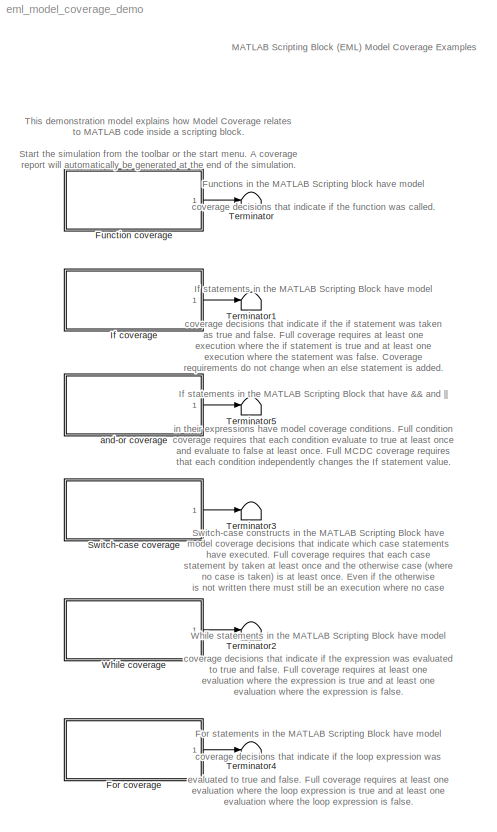
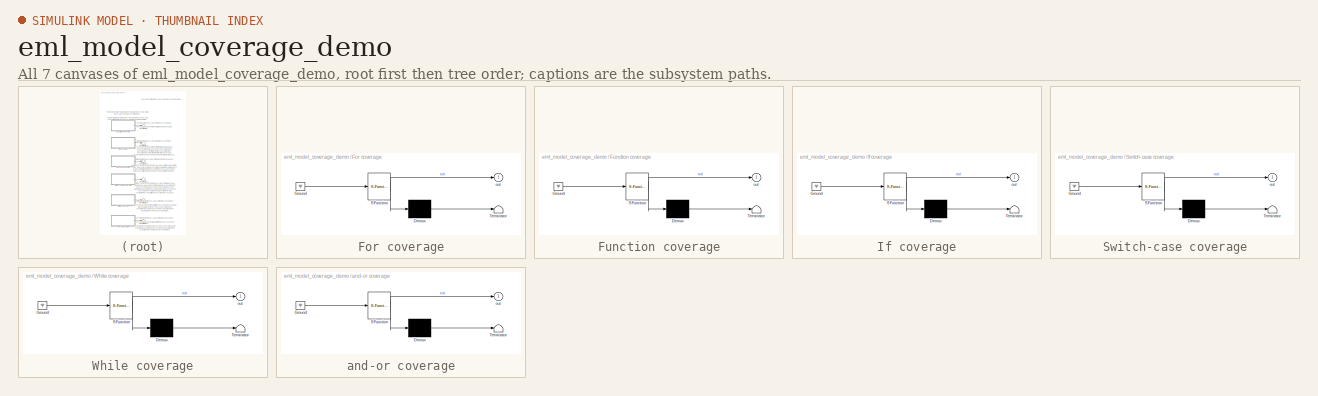
[diagram: thumbnail index - all 7 canvases of the model, root first then tree order]
MODEL eml_model_coverage_demo
KIND model
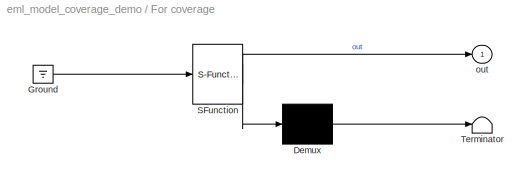
BLOCK [SubSystem] For coverage
  MaskDescription = Stateflow diagram
  MaskDisplay = disp('main');
  MaskIconFrame = on
  MaskIconOpaque = off
  MaskIconRotate = none
  MaskIconUnits = autoscale
  MaskSelfModifiable = on
  MaskType = Stateflow
  MinAlgLoopOccurrences = off
  Ports = [0, 1]
  PropExecContextAcrossSSBoundary = on
  RTWSystemCode = Auto
  TreatAsAtomicUnit = off
BLOCK [Demux] For coverage/ Demux 
  Outputs = 1
  Ports = [1, 1]
BLOCK [Ground] For coverage/ Ground 
BLOCK [S-Function] For coverage/ SFunction 
  FunctionName = sf_sfun
  PortCounts = [1 2]
  Ports = [1, 2]
  Tag = Stateflow S-Function eml_model_coverage_demo 5
BLOCK [Terminator] For coverage/ Terminator 
BLOCK [Outport] For coverage/out
  IconDisplay = Port number
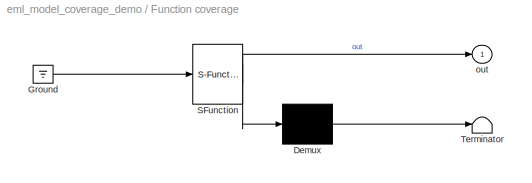
BLOCK [SubSystem] Function coverage
  MaskDescription = Stateflow diagram
  MaskDisplay = disp('main_function');
  MaskIconFrame = on
  MaskIconOpaque = off
  MaskIconRotate = none
  MaskIconUnits = autoscale
  MaskSelfModifiable = on
  MaskType = Stateflow
  MinAlgLoopOccurrences = off
  Ports = [0, 1]
  PropExecContextAcrossSSBoundary = on
  RTWSystemCode = Auto
  TreatAsAtomicUnit = off
BLOCK [Demux] Function coverage/ Demux 
  Outputs = 1
  Ports = [1, 1]
BLOCK [Ground] Function coverage/ Ground 
BLOCK [S-Function] Function coverage/ SFunction 
  FunctionName = sf_sfun
  PortCounts = [1 2]
  Ports = [1, 2]
  Tag = Stateflow S-Function eml_model_coverage_demo 2
BLOCK [Terminator] Function coverage/ Terminator 
BLOCK [Outport] Function coverage/out
  IconDisplay = Port number
BLOCK [SubSystem] If coverage
  MaskDescription = Stateflow diagram
  MaskDisplay = disp('main');
  MaskIconFrame = on
  MaskIconOpaque = off
  MaskIconRotate = none
  MaskIconUnits = autoscale
  MaskSelfModifiable = on
  MaskType = Stateflow
  MinAlgLoopOccurrences = off
  Ports = [0, 1]
  PropExecContextAcrossSSBoundary = on
  RTWSystemCode = Auto
  TreatAsAtomicUnit = off
BLOCK [Demux] If coverage/ Demux 
  Outputs = 1
  Ports = [1, 1]
BLOCK [Ground] If coverage/ Ground 
BLOCK [S-Function] If coverage/ SFunction 
  FunctionName = sf_sfun
  PortCounts = [1 2]
  Ports = [1, 2]
  Tag = Stateflow S-Function eml_model_coverage_demo 1
BLOCK [Terminator] If coverage/ Terminator 
BLOCK [Outport] If coverage/out
  IconDisplay = Port number
BLOCK [SubSystem] Switch-case coverage
  MaskDescription = Stateflow diagram
  MaskDisplay = disp('main');
  MaskIconFrame = on
  MaskIconOpaque = off
  MaskIconRotate = none
  MaskIconUnits = autoscale
  MaskSelfModifiable = on
  MaskType = Stateflow
  MinAlgLoopOccurrences = off
  Ports = [0, 1]
  PropExecContextAcrossSSBoundary = on
  RTWSystemCode = Auto
  TreatAsAtomicUnit = off
BLOCK [Demux] Switch-case coverage/ Demux 
  Outputs = 1
  Ports = [1, 1]
BLOCK [Ground] Switch-case coverage/ Ground 
BLOCK [S-Function] Switch-case coverage/ SFunction 
  FunctionName = sf_sfun
  PortCounts = [1 2]
  Ports = [1, 2]
  Tag = Stateflow S-Function eml_model_coverage_demo 4
BLOCK [Terminator] Switch-case coverage/ Terminator 
BLOCK [Outport] Switch-case coverage/out
  IconDisplay = Port number
BLOCK [Terminator] Terminator
BLOCK [Terminator] Terminator1
BLOCK [Terminator] Terminator2
BLOCK [Terminator] Terminator3
BLOCK [Terminator] Terminator4
BLOCK [Terminator] Terminator5
BLOCK [SubSystem] While coverage
  MaskDescription = Stateflow diagram
  MaskDisplay = disp('main');
  MaskIconFrame = on
  MaskIconOpaque = off
  MaskIconRotate = none
  MaskIconUnits = autoscale
  MaskSelfModifiable = on
  MaskType = Stateflow
  MinAlgLoopOccurrences = off
  Ports = [0, 1]
  PropExecContextAcrossSSBoundary = on
  RTWSystemCode = Auto
  TreatAsAtomicUnit = off
BLOCK [Demux] While coverage/ Demux 
  Outputs = 1
  Ports = [1, 1]
BLOCK [Ground] While coverage/ Ground 
BLOCK [S-Function] While coverage/ SFunction 
  FunctionName = sf_sfun
  PortCounts = [1 2]
  Ports = [1, 2]
  Tag = Stateflow S-Function eml_model_coverage_demo 3
BLOCK [Terminator] While coverage/ Terminator 
BLOCK [Outport] While coverage/out
  IconDisplay = Port number
BLOCK [SubSystem] and-or coverage
  MaskDescription = Stateflow diagram
  MaskDisplay = disp('main');
  MaskIconFrame = on
  MaskIconOpaque = off
  MaskIconRotate = none
  MaskIconUnits = autoscale
  MaskSelfModifiable = on
  MaskType = Stateflow
  MinAlgLoopOccurrences = off
  Ports = [0, 1]
  PropExecContextAcrossSSBoundary = on
  RTWSystemCode = Auto
  TreatAsAtomicUnit = off
BLOCK [Demux] and-or coverage/ Demux 
  Outputs = 1
  Ports = [1, 1]
BLOCK [Ground] and-or coverage/ Ground 
BLOCK [S-Function] and-or coverage/ SFunction 
  FunctionName = sf_sfun
  PortCounts = [1 2]
  Ports = [1, 2]
  Tag = Stateflow S-Function eml_model_coverage_demo 6
BLOCK [Terminator] and-or coverage/ Terminator 
BLOCK [Outport] and-or coverage/out
  IconDisplay = Port number
ANNOTATION (root): For statements in the MATLAB Scripting Block have model \ncoverage decisions that indicate if the loop expression was \nevaluated to true and false. Full coverage requires at least one \nevaluation where the loop expression is true and at least one \nevaluation where the loop expression is false.
ANNOTATION (root): Functions in the MATLAB Scripting block have model \ncoverage decisions that indicate if the function was called.
ANNOTATION (root): If statements in the MATLAB Scripting Block have model \ncoverage decisions that indicate if the if statement was taken\nas true and false. Full coverage requires at least one \nexecution where the if statement is true and at least one \nexecution where the statement was false. Coverage \nrequirements do not change when an else statement is added.
ANNOTATION (root): If statements in the MATLAB Scripting Block that have && and ||\nin their expressions have model coverage conditions. Full condition \ncoverage requires that each condition evaluate to true at least once \nand evaluate to false at least once. Full MCDC coverage requires \nthat each condition independently changes the If statement value.
ANNOTATION (root): MATLAB Scripting Block (EML) Model Coverage Examples
ANNOTATION (root): Switch-case constructs in the MATLAB Scripting Block have \nmodel coverage decisions that indicate which case statements\nhave executed. Full coverage requires that each case \nstatement by taken at least once and the otherwise case (where \nno case is taken) is at least once. Even if the otherwise \nis not written there must still be an execution where no case\nstatement is taken.
ANNOTATION (root): This demonstration model explains how Model Coverage relates\nto MATLAB code inside a scripting block.\n\nStart the simulation from the toolbar or the start menu. A coverage\nreport will automatically be generated at the end of the simulation.\n
ANNOTATION (root): While statements in the MATLAB Scripting Block have model \ncoverage decisions that indicate if the expression was evaluated\nto true and false. Full coverage requires at least one \nevaluation where the expression is true and at least one \nevaluation where the expression is false.
LINE For coverage/ Demux :1 -> For coverage/ Terminator :1
LINE For coverage/ Ground :1 -> For coverage/ SFunction :1
LINE For coverage/ SFunction :1 -> For coverage/ Demux :1
LINE For coverage/ SFunction :2 -> For coverage/out:1
LINE For coverage:1 -> Terminator4:1
LINE Function coverage/ Demux :1 -> Function coverage/ Terminator :1
LINE Function coverage/ Ground :1 -> Function coverage/ SFunction :1
LINE Function coverage/ SFunction :1 -> Function coverage/ Demux :1
LINE Function coverage/ SFunction :2 -> Function coverage/out:1
LINE Function coverage:1 -> Terminator:1
LINE If coverage/ Demux :1 -> If coverage/ Terminator :1
LINE If coverage/ Ground :1 -> If coverage/ SFunction :1
LINE If coverage/ SFunction :1 -> If coverage/ Demux :1
LINE If coverage/ SFunction :2 -> If coverage/out:1
LINE If coverage:1 -> Terminator1:1
LINE Switch-case coverage/ Demux :1 -> Switch-case coverage/ Terminator :1
LINE Switch-case coverage/ Ground :1 -> Switch-case coverage/ SFunction :1
LINE Switch-case coverage/ SFunction :1 -> Switch-case coverage/ Demux :1
LINE Switch-case coverage/ SFunction :2 -> Switch-case coverage/out:1
LINE Switch-case coverage:1 -> Terminator3:1
LINE While coverage/ Demux :1 -> While coverage/ Terminator :1
LINE While coverage/ Ground :1 -> While coverage/ SFunction :1
LINE While coverage/ SFunction :1 -> While coverage/ Demux :1
LINE While coverage/ SFunction :2 -> While coverage/out:1
LINE While coverage:1 -> Terminator2:1
LINE and-or coverage/ Demux :1 -> and-or coverage/ Terminator :1
LINE and-or coverage/ Ground :1 -> and-or coverage/ SFunction :1
LINE and-or coverage/ SFunction :1 -> and-or coverage/ Demux :1
LINE and-or coverage/ SFunction :2 -> and-or coverage/out:1
LINE and-or coverage:1 -> Terminator5:1
CHART If coverage states=1 transitions=1
  STATE_LABEL 'eML_blk_kernel()'
CHART Function coverage states=1 transitions=1
  STATE_LABEL 'eML_blk_kernel()'
CHART While coverage states=1 transitions=1
  STATE_LABEL 'eML_blk_kernel()'
CHART Switch-case coverage states=1 transitions=1
  STATE_LABEL 'eML_blk_kernel()'
CHART For coverage states=1 transitions=1
  STATE_LABEL 'eML_blk_kernel()'
CHART and-or coverage states=1 transitions=1
  STATE_LABEL 'eML_blk_kernel()'
